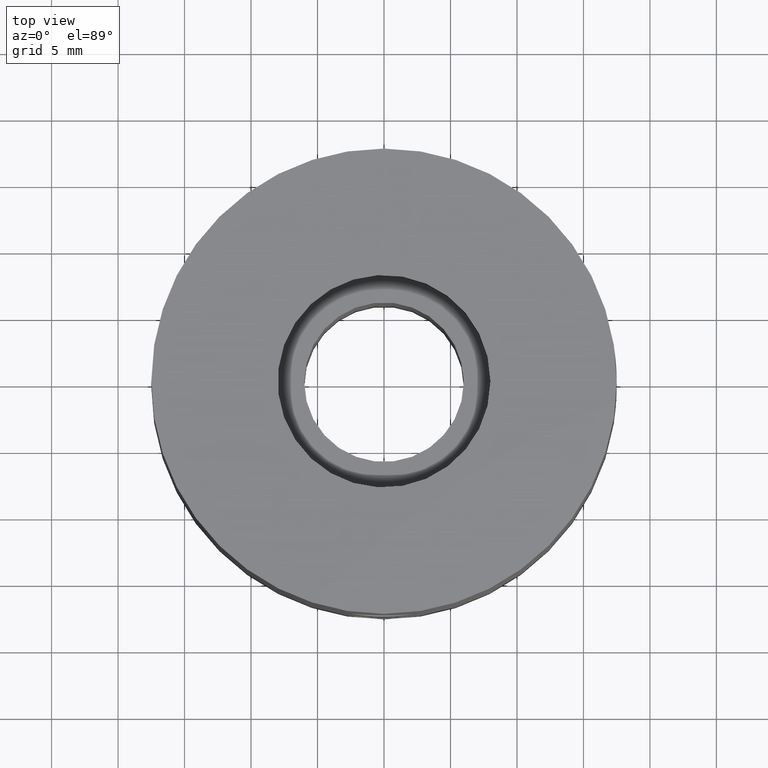
[diagram: clean part render]
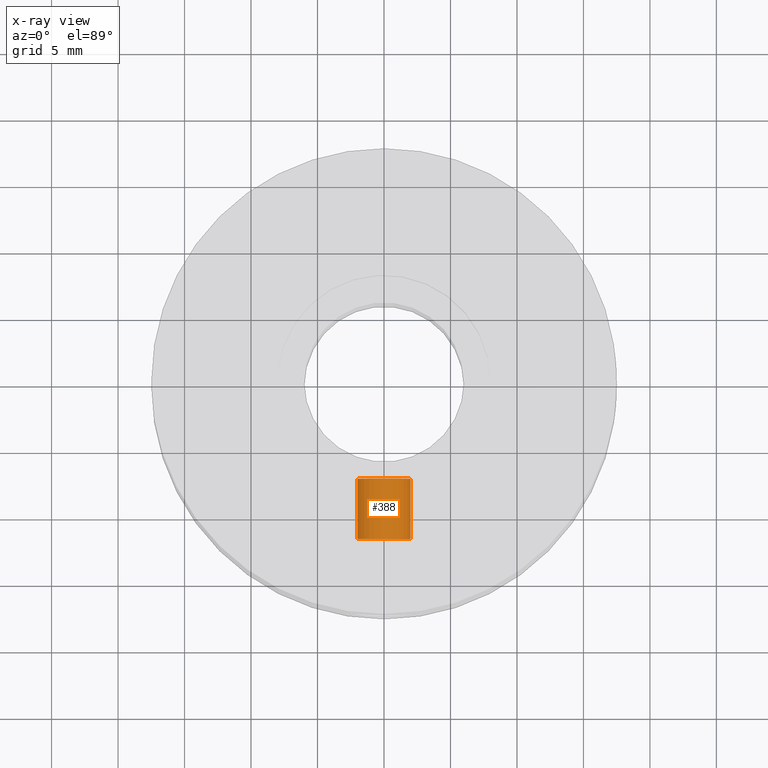
[diagram: x-ray — body ghosted, one internal face saturated and labeled with its STEP entity id]
A machine part, top view, then the same camera in x-ray: the body is ghosted and one INTERNAL B-rep face — a face not visible from any outside direction — is saturated and labeled: STEP entity #388.
In plain terms, the highlighted cylindrical surface (bore or boss wall) has radius 2 mm, axis along (0, -1, -0).
Its self-contained STEP definition (entity closure, byte-faithful):
#388 = ADVANCED_FACE( '', ( #518, #519 ), #520, .T. );
#518 = FACE_OUTER_BOUND( '', #690, .T. );
#519 = FACE_OUTER_BOUND( '', #691, .T. );
#520 = CYLINDRICAL_SURFACE( '', #692, 2.00000000000000 );
#690 = EDGE_LOOP( '', ( #948 ) );
#691 = EDGE_LOOP( '', ( #949 ) );
#692 = AXIS2_PLACEMENT_3D( '', #950, #951, #952 );
#948 = ORIENTED_EDGE( '', *, *, #1210, .T. );
#949 = ORIENTED_EDGE( '', *, *, #1231, .F. );
#950 = CARTESIAN_POINT( '', ( -3.06029711446813E-017, -6.02675383888527, -29.0000000000000 ) );
#951 = DIRECTION( '', ( 2.02226624879745E-021, -1.00000000000000, -0.000000000000000 ) );
#952 = DIRECTION( '', ( -1.00000000000000, -2.02226624879745E-021, 0.000000000000000 ) );
#1210 = EDGE_CURVE( '', #1346, #1346, #1347, .T. );
#1231 = EDGE_CURVE( '', #1380, #1380, #1381, .T. );
#1346 = VERTEX_POINT( '', #2002 );
#1347 = CIRCLE( '', #2003, 2.00000000000000 );
#1380 = VERTEX_POINT( '', #2078 );
#1381 = CIRCLE( '', #2079, 2.00000000000000 );
#2002 = CARTESIAN_POINT( '', ( -2.00000000000000, -11.5267538388853, -29.0000000000000 ) );
#2003 = AXIS2_PLACEMENT_3D( '', #2362, #2363, #2364 );
#2078 = CARTESIAN_POINT( '', ( -2.00000000000000, -7.02675383888527, -29.0000000000000 ) );
#2079 = AXIS2_PLACEMENT_3D( '', #2380, #2381, #2382 );
#2362 = CARTESIAN_POINT( '', ( -3.05918486803129E-017, -11.5267538388853, -29.0000000000000 ) );
#2363 = DIRECTION( '', ( -2.02226624879745E-021, 1.00000000000000, 0.000000000000000 ) );
#2364 = DIRECTION( '', ( -1.00000000000000, -2.02226624879745E-021, 0.000000000000000 ) );
#2380 = CARTESIAN_POINT( '', ( -3.06009488784324E-017, -7.02675383888527, -29.0000000000000 ) );
#2381 = DIRECTION( '', ( -2.02226624879745E-021, 1.00000000000000, 0.000000000000000 ) );
#2382 = DIRECTION( '', ( -1.00000000000000, -2.02226624879745E-021, 0.000000000000000 ) );